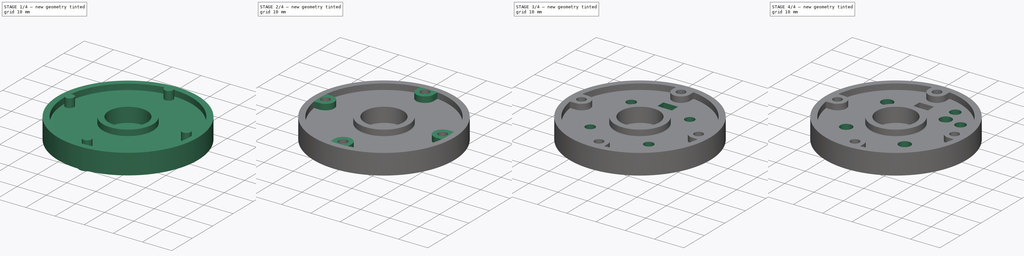
[diagram: build sequence overview — one tinted view per stage of 4, left to right]
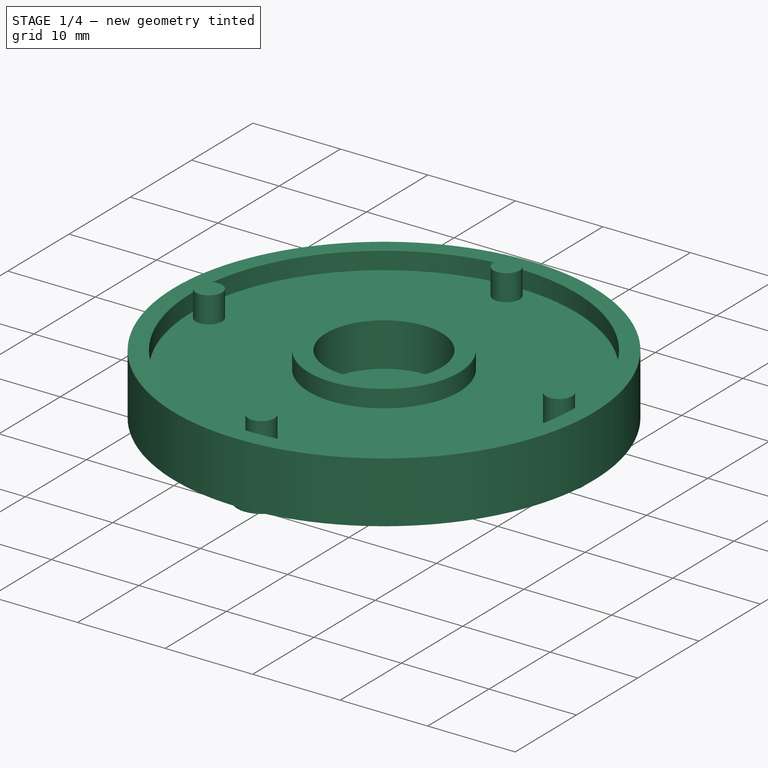
[diagram: stage 1 of 4 — iso view after this stage's code; geometry added in this stage tinted green]
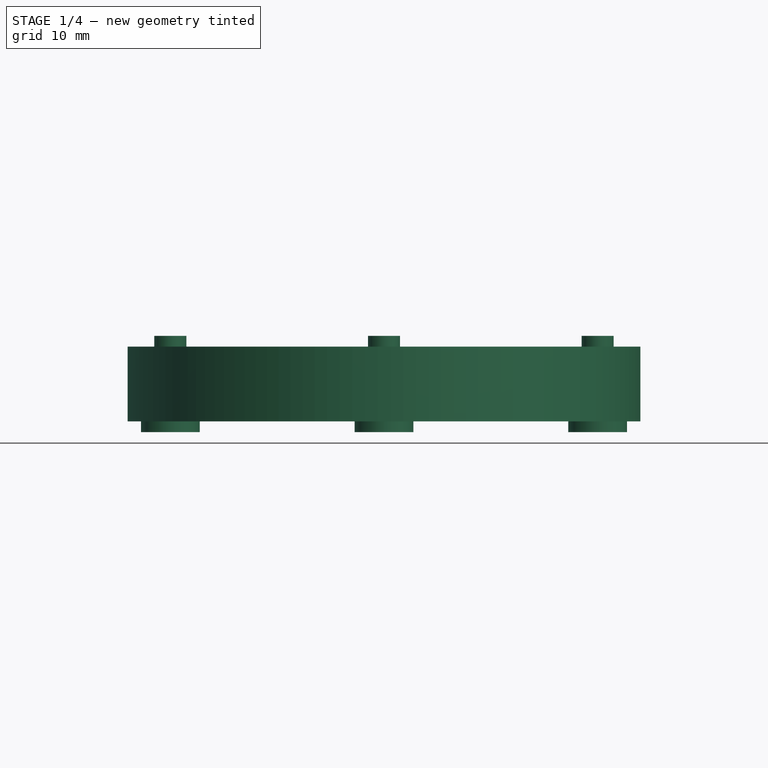
[diagram: stage 1 of 4 — front view after this stage's code; geometry added in this stage tinted green]
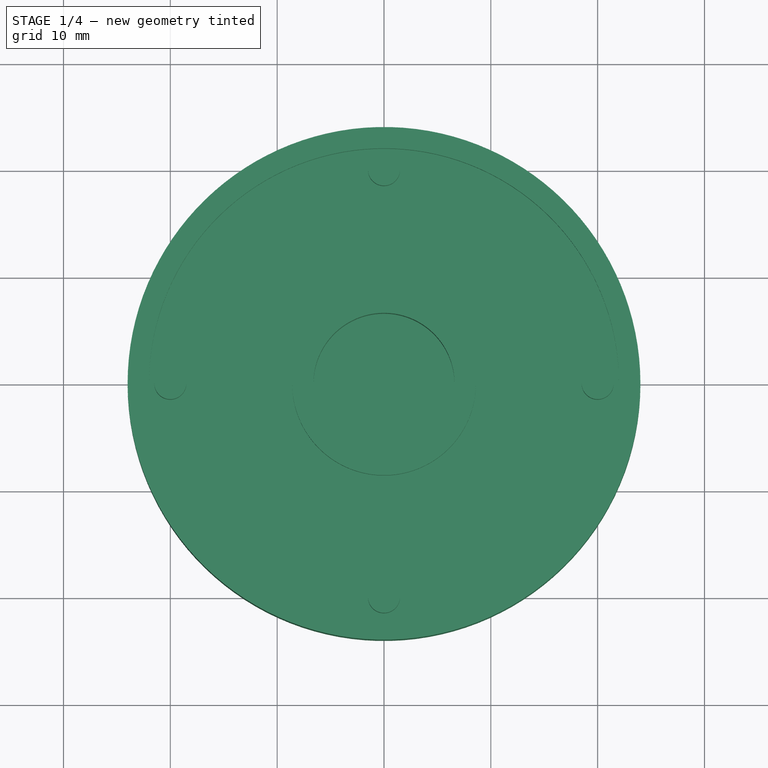
[diagram: stage 1 of 4 — top view after this stage's code; geometry added in this stage tinted green]
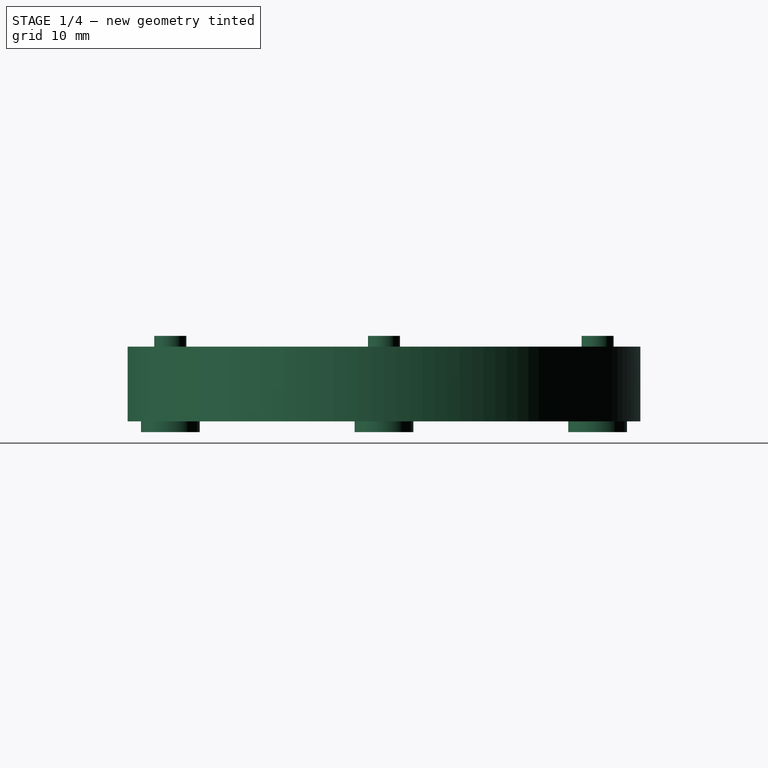
[diagram: stage 1 of 4 — right view after this stage's code; geometry added in this stage tinted green]
FCSTD DOCUMENT  (FreeCAD 0.16RUnknown)
Label: body_bottom
License: All rights reserved
LicenseURL: http://en.wikipedia.org/wiki/All_rights_reserved
objects: Sketcher::SketchObject×8, PartDesign::Pocket×5, PartDesign::Revolution×1, PartDesign::Pad×1, PartDesign::PolarPattern×1, Part::Revolution×1, Part::FeaturePython×1, Part::Cut×1
note: 26 computed .brp shape members not serialized (recipe doc carries the construction recipe); baked Part::Feature solids carry a one-line shape summary decoded from their .brp

FEATURE [Sketcher::SketchObject] Sketch
  Placement = pos=(0,0,0) rot=(1,0,0;1.5708rad)
  sketch-geometry (10):
    g0: LineSegment StartX=0 StartY=0 StartZ=0 EndX=24 EndY=0 EndZ=0
    g1: LineSegment StartX=24 StartY=0 StartZ=0 EndX=24 EndY=7 EndZ=0
    g2: LineSegment StartX=24 StartY=7 StartZ=0 EndX=22 EndY=7 EndZ=0
    g3: LineSegment StartX=22 StartY=7 StartZ=0 EndX=22 EndY=5 EndZ=0
    g4: LineSegment StartX=0 StartY=2 StartZ=0 EndX=0 EndY=0 EndZ=0
    g5: LineSegment StartX=22 StartY=5 StartZ=0 EndX=8.6 EndY=5 EndZ=0
    g6: LineSegment StartX=8.6 StartY=5 StartZ=0 EndX=8.6 EndY=7 EndZ=0
    g7: LineSegment StartX=8.6 StartY=7 StartZ=0 EndX=6.6 EndY=7 EndZ=0
    g8: LineSegment StartX=6.6 StartY=7 StartZ=0 EndX=6.6 EndY=2 EndZ=0
    g9: LineSegment StartX=6.6 StartY=2 StartZ=0 EndX=0 EndY=2 EndZ=0
  constraints (29):
    c: Coincident(g-1,g0)
    c: PointOnObject(g0,g-1)
    c: Coincident(g0,g1)
    c: Vertical(g1)
    c: Horizontal(g2)
    c: Coincident(g2,g3)
    c: Vertical(g3)
    c: Coincident(g4,g0)
    c: Vertical(g4)
    c: DistanceX(g0) = 24
    c: Coincident(g1,g2)
    c: DistanceY(g3,g3) = 2
    c: DistanceX(g2,g2) = 2
    c: Coincident(g3,g5)
    c: Horizontal(g5)
    c: Coincident(g5,g6)
    c: Vertical(g6)
    c: Coincident(g6,g7)
    c: Coincident(g7,g8)
    c: Coincident(g8,g9)
    c: Coincident(g9,g4)
    c: DistanceY(g0,g3) = 5
    c: DistanceX(g9,g9) = 6.6
    c: Vertical(g8)
    c: Horizontal(g7)
    c: DistanceX(g7,g7) = 2
    c: DistanceY(g6,g6) = 2
    c: DistanceY(g8,g8) = 5
    c: Horizontal(g9)
FEATURE [Sketcher::SketchObject] Sketch002
  Placement = pos=(0,0,0) rot=(1,0,0;1.5708rad)
  sketch-geometry (6):
    g0: LineSegment StartX=17.25 StartY=-1 StartZ=0 EndX=17.25 EndY=4 EndZ=0
    g1: LineSegment StartX=17.25 StartY=4 StartZ=0 EndX=18.5 EndY=4 EndZ=0
    g2: LineSegment StartX=18.5 StartY=4 StartZ=0 EndX=18.5 EndY=8 EndZ=0
    g3: LineSegment StartX=18.5 StartY=8 StartZ=0 EndX=20 EndY=8 EndZ=0
    g4: LineSegment StartX=20 StartY=8 StartZ=0 EndX=20 EndY=-1 EndZ=0
    g5: LineSegment StartX=20 StartY=-1 StartZ=0 EndX=17.25 EndY=-1 EndZ=0
  constraints (18):
    c: Vertical(g0)
    c: Coincident(g0,g1)
    c: Coincident(g1,g2)
    c: Vertical(g2)
    c: Coincident(g2,g3)
    c: Horizontal(g3)
    c: Coincident(g3,g4)
    c: Vertical(g4)
    c: Coincident(g4,g5)
    c: Coincident(g5,g0)
    c: Horizontal(g5)
    c: DistanceY(g-1,g0) = -1
    c: DistanceY(g-1,g0) = 4
    c: Horizontal(g1)
    c: DistanceX(g5) = -2.75
    c: DistanceY(g4) = -9
    c: DistanceX(g3) = 1.5
    c: DistanceX(g-1,g4) = 20
FEATURE [PartDesign::Revolution] Revolution
  Angle = 360
  Axis = (0,0,1)
  Base = (0,0,0)
  Placement = pos=(0,0,0) rot=(1,0,0;1.5708rad)
  ReferenceAxis = -> Sketch [V_Axis]
  Reversed = true
  Sketch = -> Sketch
FEATURE [Part::Revolution] Revolve
  Angle = 360
  Axis = (0,0,-1)
  Base = (20,0,8)
  Solid = true
  Source = -> Sketch002
FEATURE [Part::FeaturePython] Array  # Draft array (typed FeaturePython)
  Angle = 360
  ArrayType = 1
  Axis = (0,0,1)
  Base = -> Revolve
  Center = (0,0,0)
  Fuse = false
  IntervalAxis = (0,0,0)
  IntervalX = (1,0,0)
  IntervalY = (0,1,0)
  IntervalZ = (0,0,0)
  NumberPolar = 4
  NumberX = 2
  NumberY = 2
  NumberZ = 1
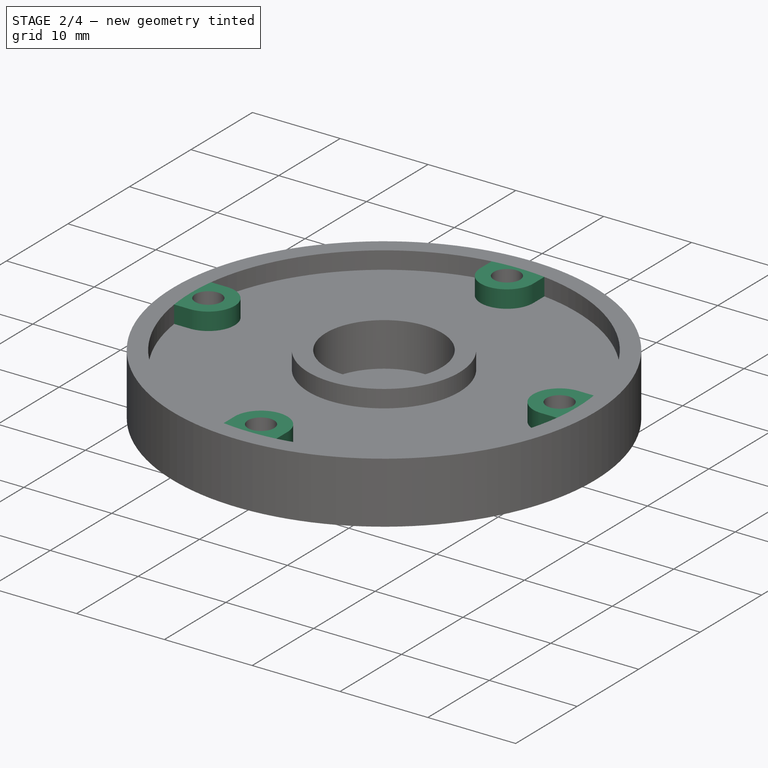
[diagram: stage 2 of 4 — iso view after this stage's code; geometry added in this stage tinted green]
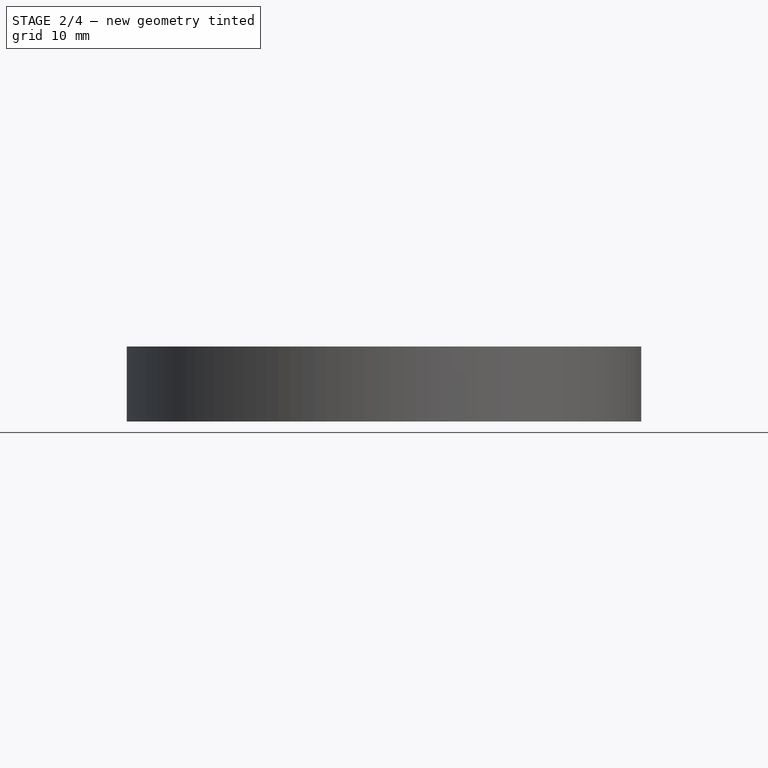
[diagram: stage 2 of 4 — front view after this stage's code; geometry added in this stage tinted green]
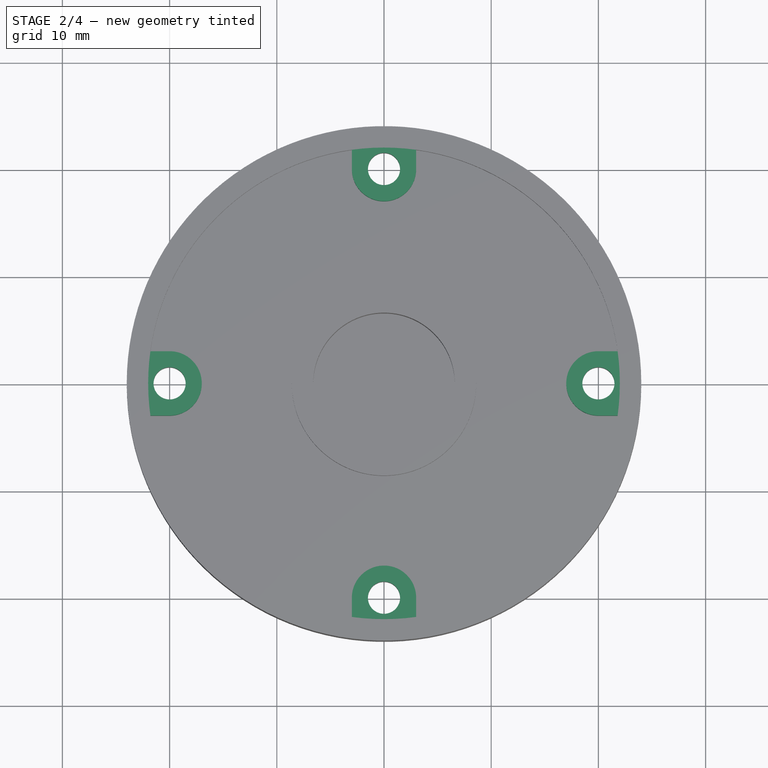
[diagram: stage 2 of 4 — top view after this stage's code; geometry added in this stage tinted green]
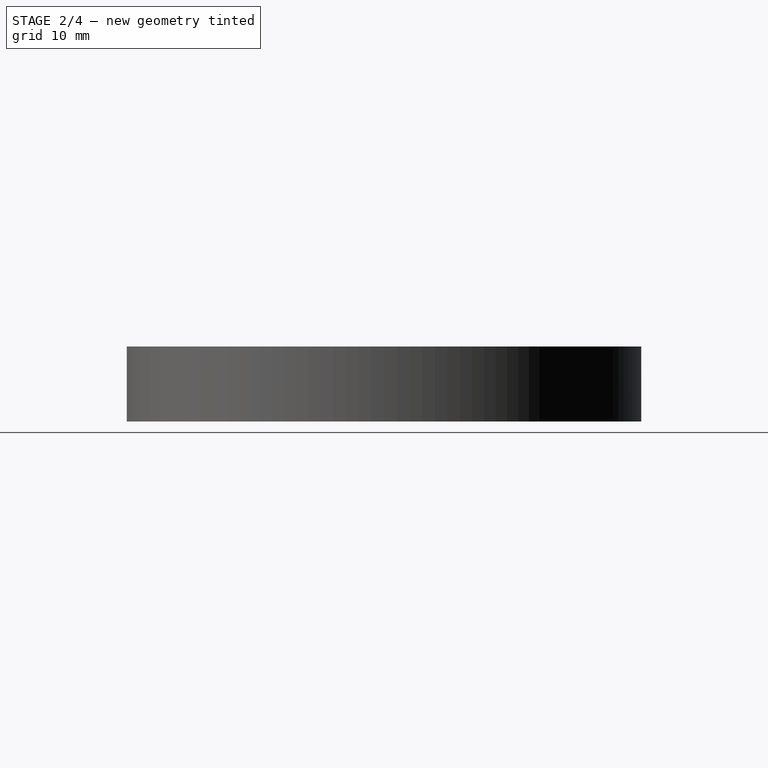
[diagram: stage 2 of 4 — right view after this stage's code; geometry added in this stage tinted green]
FEATURE [Sketcher::SketchObject] Sketch004
  Placement = pos=(0,0,7) rot=(0,0,1;3.14159rad)
  Support = -> Revolution [Face7]
  sketch-geometry (6):
    g0: LineSegment StartX=3 StartY=-22 StartZ=0 EndX=-3 EndY=-22 EndZ=0
    g1: LineSegment StartX=-3 StartY=-22 StartZ=0 EndX=-3 EndY=-20 EndZ=0
    g2: LineSegment [constr] StartX=-3 StartY=-20 StartZ=0 EndX=3 EndY=-20 EndZ=0
    g3: LineSegment StartX=3 StartY=-20 StartZ=0 EndX=3 EndY=-22 EndZ=0
    g4: GeomPoint [constr] X=0 Y=-22 Z=0
    g5: ArcOfCircle CenterX=0 CenterY=-20 CenterZ=0 NormalX=0 NormalY=0 NormalZ=1 Radius=3 StartAngle=0 EndAngle=3.14159
  constraints (17):
    c: Coincident(g0,g1)
    c: Coincident(g1,g2)
    c: Coincident(g2,g3)
    c: Coincident(g3,g0)
    c: Horizontal(g0)
    c: Horizontal(g2)
    c: Vertical(g1)
    c: Vertical(g3)
    c: PointOnObject(g4,g-2)
    c: PointOnObject(g4,g0)
    c: Symmetric(g0,g0,g4)
    c: DistanceY(g1) = 2
    c: DistanceX(g2) = 6
    c: PointOnObject(g5,g2)
    c: Coincident(g5,g1)
    c: Coincident(g5,g2)
    c: DistanceY(g5,g-1) = 20
FEATURE [PartDesign::Pad] Pad
  Length = 2
  Length2 = 100
  Placement = pos=(0,0,0) rot=(1,0,0;1.5708rad)
  Reversed = true
  Sketch = -> Sketch004
  Type = 0
FEATURE [PartDesign::PolarPattern] PolarPattern
  Angle = 360
  Axis = -> Sketch004 [N_Axis]
  Occurrences = 4
  Originals = -> [Pad]
  Placement = pos=(0,0,0) rot=(1,0,0;1.5708rad)
FEATURE [Part::Cut] Cut
  Base = -> PolarPattern
  Tool = -> Array
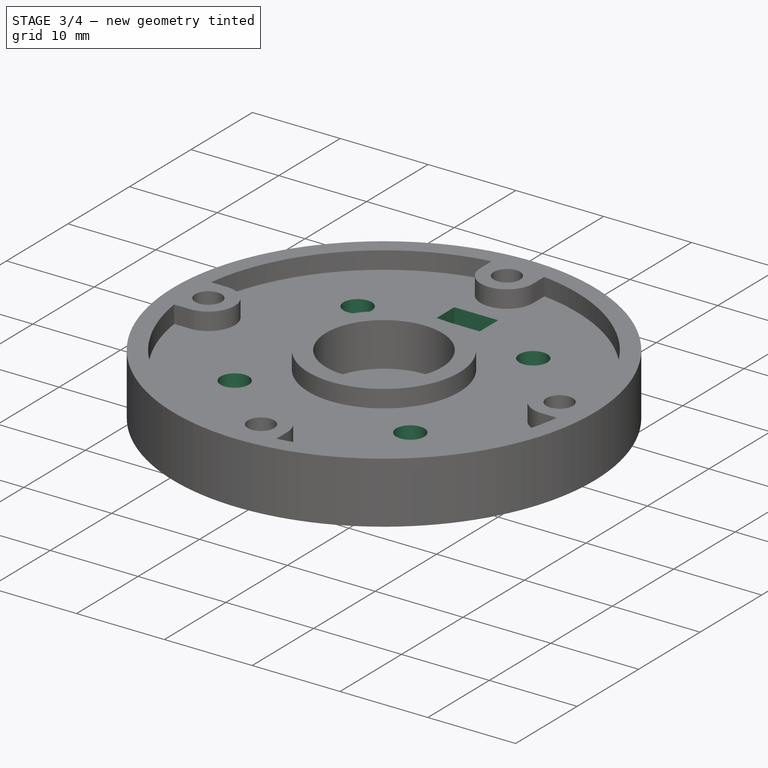
[diagram: stage 3 of 4 — iso view after this stage's code; geometry added in this stage tinted green]
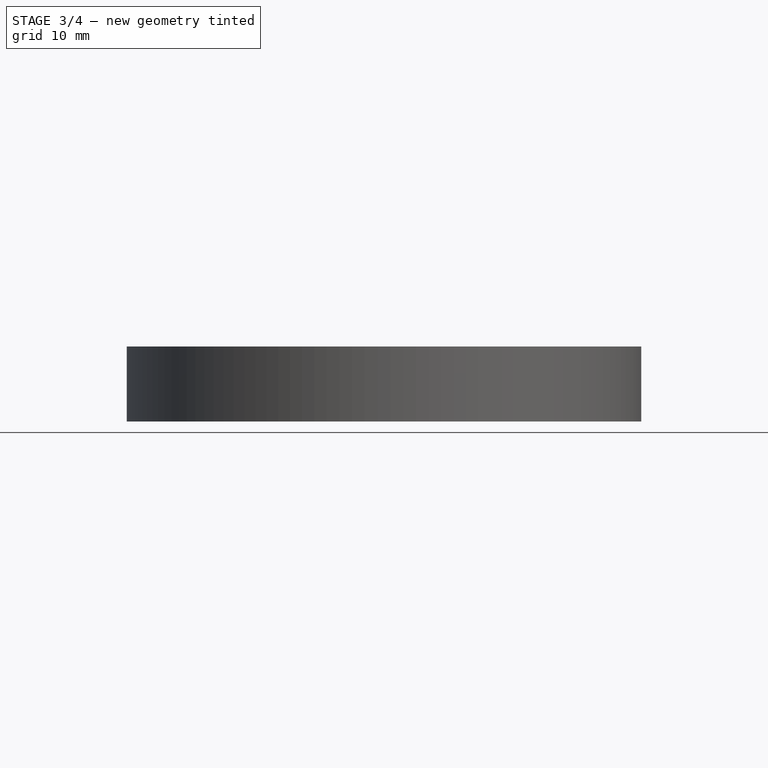
[diagram: stage 3 of 4 — front view after this stage's code; geometry added in this stage tinted green]
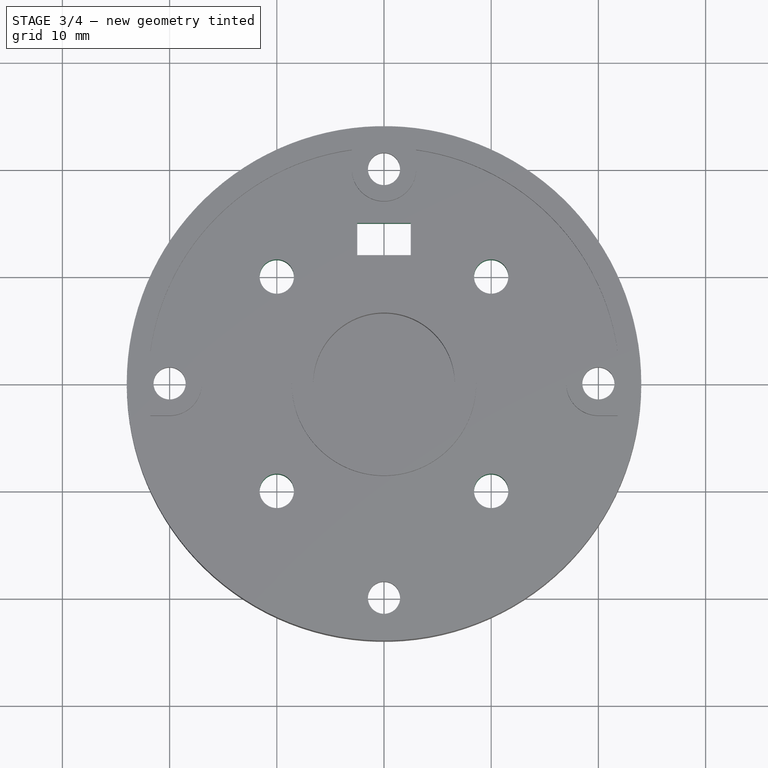
[diagram: stage 3 of 4 — top view after this stage's code; geometry added in this stage tinted green]
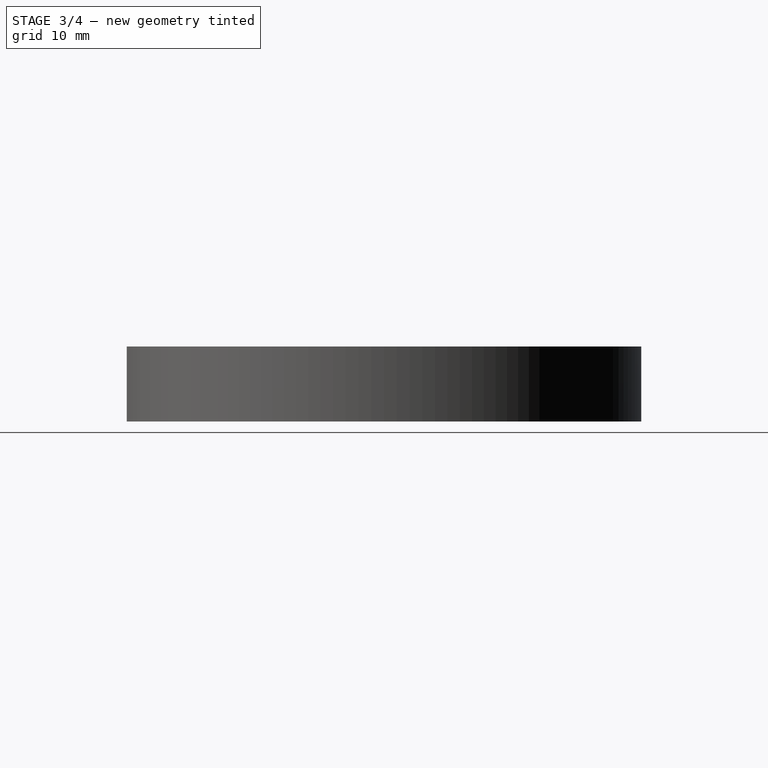
[diagram: stage 3 of 4 — right view after this stage's code; geometry added in this stage tinted green]
FEATURE [Sketcher::SketchObject] Sketch005
  Placement = pos=(0,0,5) rot=(0,0,1;0rad)
  Support = -> Cut [Face30]
  sketch-geometry (8):
    g0: LineSegment [constr] StartX=-10 StartY=10 StartZ=0 EndX=10 EndY=10 EndZ=0
    g1: LineSegment [constr] StartX=10 StartY=10 StartZ=0 EndX=10 EndY=-10 EndZ=0
    g2: LineSegment [constr] StartX=10 StartY=-10 StartZ=0 EndX=-10 EndY=-10 EndZ=0
    g3: LineSegment [constr] StartX=-10 StartY=-10 StartZ=0 EndX=-10 EndY=10 EndZ=0
    g4: Circle CenterX=-10 CenterY=10 CenterZ=0 NormalX=0 NormalY=0 NormalZ=1 Radius=1.6
    g5: Circle CenterX=10 CenterY=10 CenterZ=0 NormalX=0 NormalY=0 NormalZ=1 Radius=1.6
    g6: Circle CenterX=10 CenterY=-10 CenterZ=0 NormalX=0 NormalY=0 NormalZ=1 Radius=1.6
    g7: Circle CenterX=-10 CenterY=-10 CenterZ=0 NormalX=0 NormalY=0 NormalZ=1 Radius=1.6
  constraints (20):
    c: Coincident(g0,g1)
    c: Coincident(g1,g2)
    c: Coincident(g2,g3)
    c: Coincident(g3,g0)
    c: Horizontal(g0)
    c: Horizontal(g2)
    c: Vertical(g1)
    c: Vertical(g3)
    c: Symmetric(g0,g1,g-1)
    c: Symmetric(g0,g0,g-2)
    c: DistanceX(g0,g0) = 20
    c: DistanceY(g1,g1) = 20
    c: Coincident(g4,g0)
    c: Coincident(g5,g0)
    c: Coincident(g6,g1)
    c: Coincident(g7,g2)
    c: Equal(g4,g7)
    c: Equal(g7,g6)
    c: Equal(g6,g5)
    c: Radius(g5) = 1.6
FEATURE [PartDesign::Pocket] Pocket
  Length = 5
  Sketch = -> Sketch005
  Type = 1
FEATURE [Sketcher::SketchObject] Sketch007
  Placement = pos=(0,0,5) rot=(0,0,1;0rad)
  Support = -> Pocket [Face12]
  sketch-geometry (4):
    g0: LineSegment StartX=-2.5 StartY=15 StartZ=0 EndX=2.5 EndY=15 EndZ=0
    g1: LineSegment StartX=2.5 StartY=15 StartZ=0 EndX=2.5 EndY=12 EndZ=0
    g2: LineSegment StartX=2.5 StartY=12 StartZ=0 EndX=-2.5 EndY=12 EndZ=0
    g3: LineSegment StartX=-2.5 StartY=12 StartZ=0 EndX=-2.5 EndY=15 EndZ=0
  constraints (12):
    c: Coincident(g0,g1)
    c: Coincident(g1,g2)
    c: Coincident(g2,g3)
    c: Coincident(g3,g0)
    c: Horizontal(g0)
    c: Horizontal(g2)
    c: Vertical(g1)
    c: Vertical(g3)
    c: Symmetric(g1,g2,g-2)
    c: DistanceX(g0,g0) = 5
    c: DistanceY(g1,g1) = 3
    c: DistanceY(g-1,g1) = 12
FEATURE [PartDesign::Pocket] Pocket001
  Length = 5
  Sketch = -> Sketch007
  Type = 1
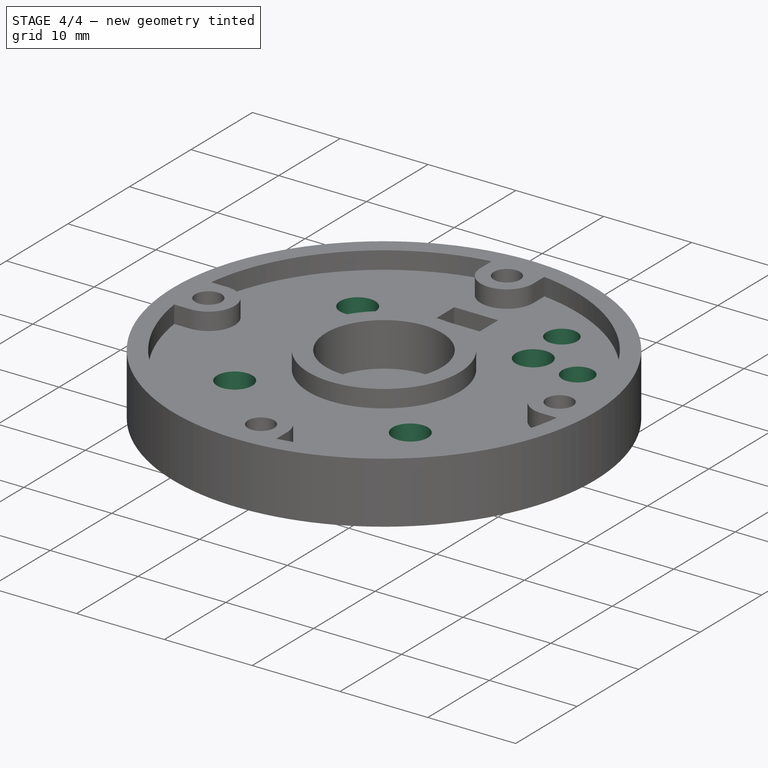
[diagram: stage 4 of 4 — iso view after this stage's code; geometry added in this stage tinted green]
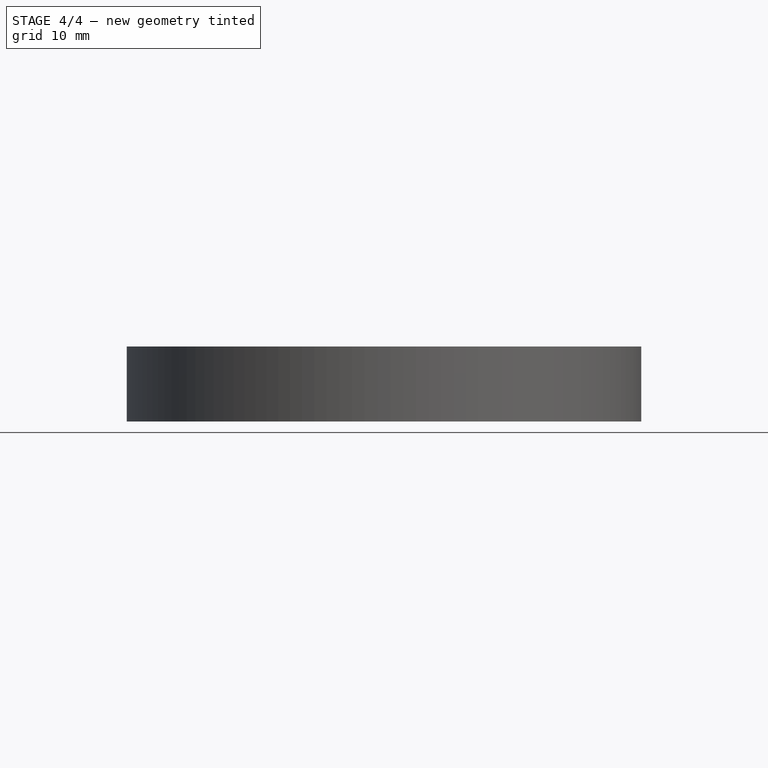
[diagram: stage 4 of 4 — front view after this stage's code; geometry added in this stage tinted green]
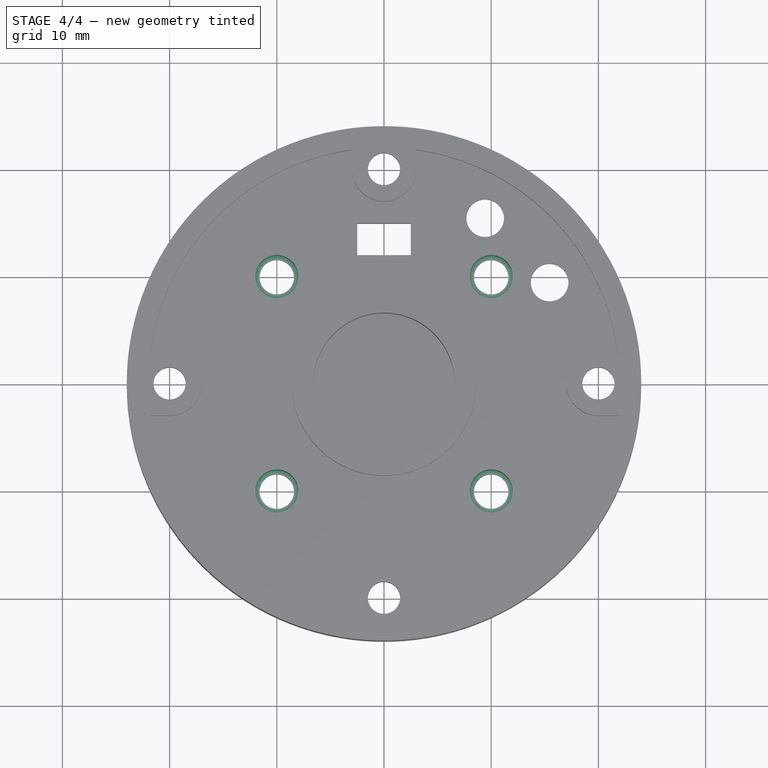
[diagram: stage 4 of 4 — top view after this stage's code; geometry added in this stage tinted green]
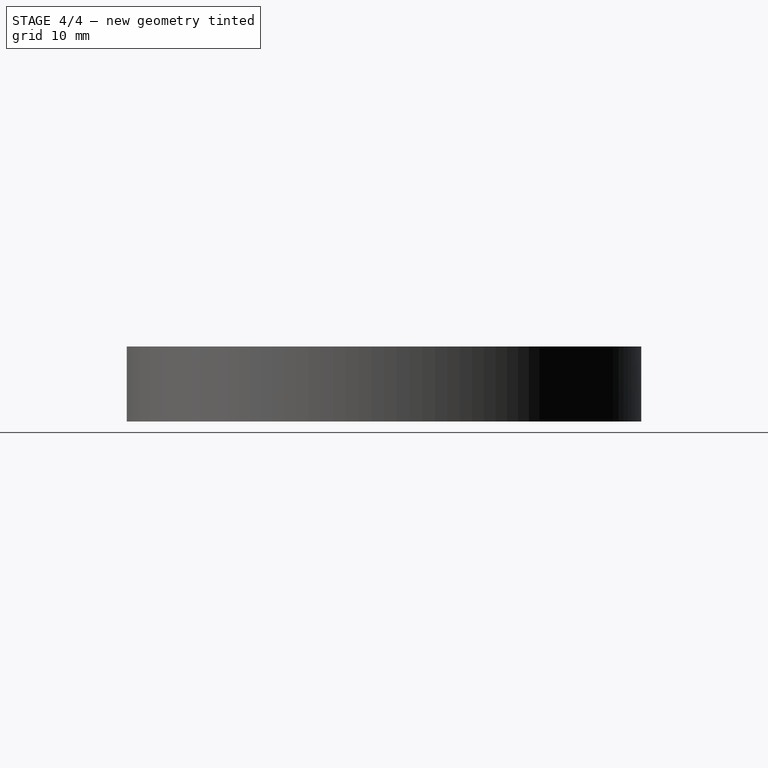
[diagram: stage 4 of 4 — right view after this stage's code; geometry added in this stage tinted green]
FEATURE [Sketcher::SketchObject] Sketch008
  ExternalGeometry = -> [Pocket001]
  Placement = pos=(0,0,5) rot=(0,0,1;0rad)
  Support = -> Pocket001 [Face16]
  sketch-geometry (4):
    g0: Circle CenterX=-10 CenterY=10 CenterZ=0 NormalX=0 NormalY=0 NormalZ=1 Radius=2
    g1: Circle CenterX=10 CenterY=10 CenterZ=0 NormalX=0 NormalY=0 NormalZ=1 Radius=2
    g2: Circle CenterX=10 CenterY=-10 CenterZ=0 NormalX=0 NormalY=0 NormalZ=1 Radius=2
    g3: Circle CenterX=-10 CenterY=-10 CenterZ=0 NormalX=0 NormalY=0 NormalZ=1 Radius=2
  constraints (8):
    c: Coincident(g0,g-4)
    c: Coincident(g1,g-3)
    c: Coincident(g2,g-5)
    c: Coincident(g3,g-6)
    c: Equal(g2,g3)
    c: Equal(g3,g0)
    c: Equal(g0,g1)
    c: Radius(g1) = 2
FEATURE [PartDesign::Pocket] Pocket002
  Length = 4
  Sketch = -> Sketch008
  Type = 0
FEATURE [Sketcher::SketchObject] Sketch009
  ExternalGeometry = -> [Pocket002]
  Placement = pos=(0,0,5) rot=(0,0,1;0rad)
  Support = -> Pocket002 [Face20]
  sketch-geometry (4):
    g0: LineSegment [constr] StartX=9.43988 StartY=15.4503 StartZ=0 EndX=15.4503 EndY=9.43988 EndZ=0
    g1: Circle CenterX=9.43988 CenterY=15.4503 CenterZ=0 NormalX=0 NormalY=0 NormalZ=1 Radius=1.75
    g2: Circle CenterX=15.4503 CenterY=9.43988 CenterZ=0 NormalX=0 NormalY=0 NormalZ=1 Radius=1.75
    g3: LineSegment [constr] StartX=12.4451 StartY=12.4451 StartZ=0 EndX=0 EndY=0 EndZ=0
  constraints (13):
    c: Coincident(g1,g0)
    c: Coincident(g2,g0)
    c: PointOnObject(g3,g0)
    c: Perpendicular(g-3,g3)
    c: Perpendicular(g0,g3)
    c: Equal(g2,g1)
    c: Radius(g1) = 1.75
    c: Symmetric(g0,g0,g3)
    c: PointOnObject(g3,g-3)
    c: Distance(g0) = 8.5
    c: Distance(g-1,g3) = 17.6
    c: Coincident(g3,g-1)
    c: Angle(g3,g-2) = 0.785398
FEATURE [PartDesign::Pocket] Pocket003
  Length = 5
  Sketch = -> Sketch009
  Type = 1
FEATURE [Sketcher::SketchObject] Sketch010
  ExternalGeometry = -> [Pocket003]
  Placement = pos=(0,0,0) rot=(1,0,0;3.14159rad)
  Support = -> Pocket003 [Face1]
  sketch-geometry (2):
    g0: Circle CenterX=15.4503 CenterY=-9.43988 CenterZ=0 NormalX=0 NormalY=0 NormalZ=1 Radius=2.7
    g1: Circle CenterX=9.43988 CenterY=-15.4503 CenterZ=0 NormalX=0 NormalY=0 NormalZ=1 Radius=2.7
  constraints (4):
    c: Equal(g0,g1)
    c: Radius(g0) = 2.7
    c: Coincident(g-5,g1)
    c: Coincident(g0,g-4)
FEATURE [PartDesign::Pocket] Pocket004
  Length = 3.5
  Sketch = -> Sketch010
  Type = 0
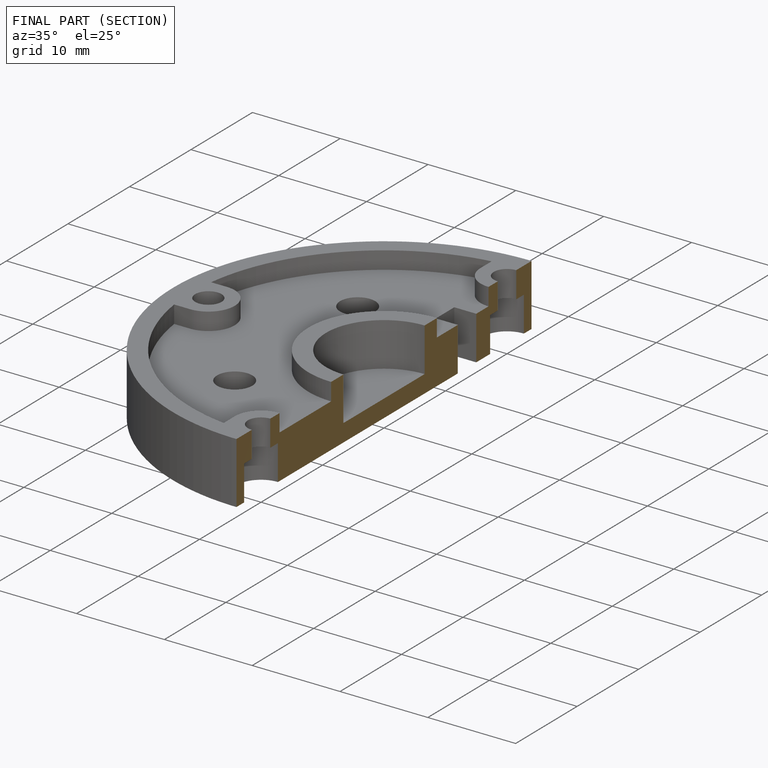
[diagram: finished part — half-section view (interior)]
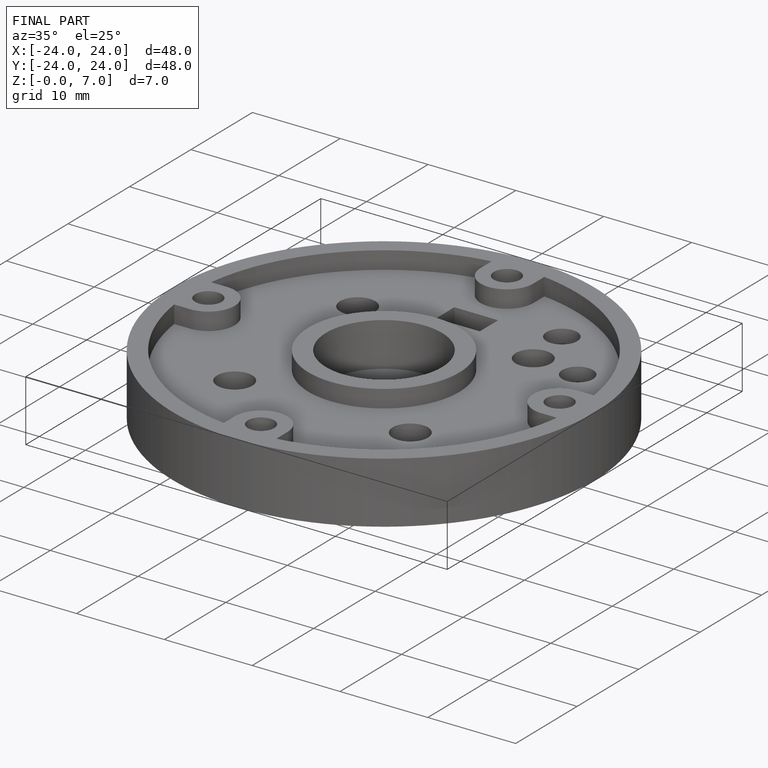
[diagram: finished part — iso view with bounding-box wireframe]
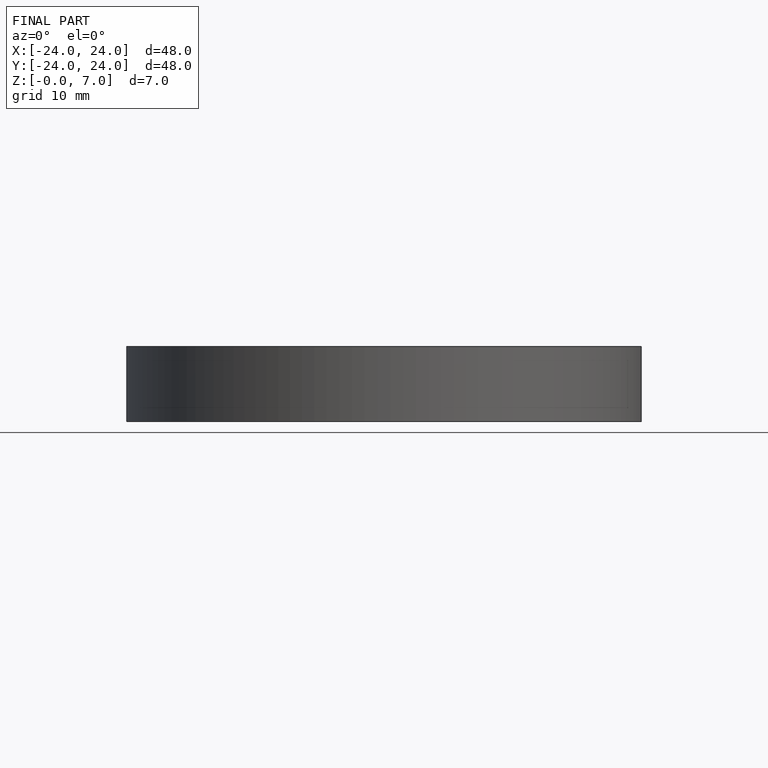
[diagram: finished part — front view with bounding-box wireframe]
